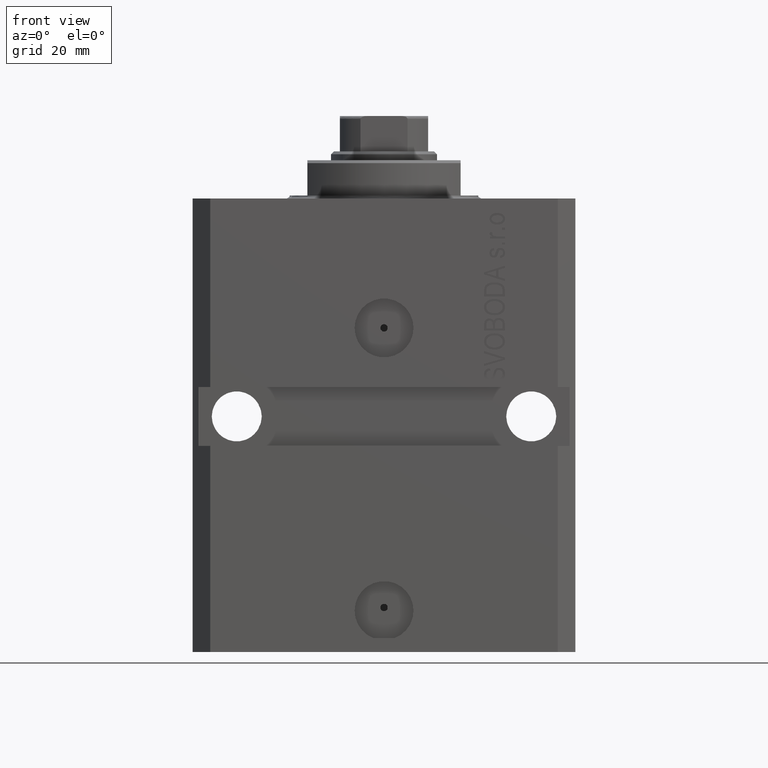
[diagram: clean part render]
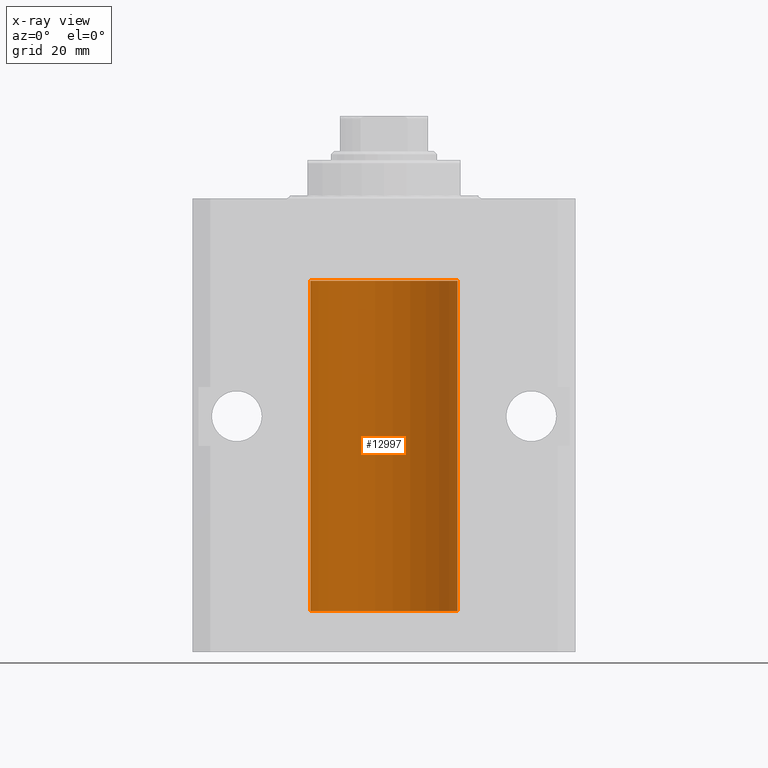
[diagram: x-ray — body ghosted, one internal face saturated and labeled with its STEP entity id]
A machine part, front view, then the same camera in x-ray: the body is ghosted and one INTERNAL B-rep face — a face not visible from any outside direction — is saturated and labeled: STEP entity #12997.
In plain terms, the highlighted cylindrical surface (partial cylindrical patch) has radius 12.5 mm, axis along (0, 0, 1).
Its self-contained STEP definition (entity closure, byte-faithful):
#411 = CARTESIAN_POINT ( 'NONE',  ( -12.49625855304193500, 0.3150454781038046770, -64.45402800297485157 ) ) ;
#903 = LINE ( 'NONE', #18363, #2427 ) ;
#1069 = CARTESIAN_POINT ( 'NONE',  ( -12.50000000000000000, 1.530808498934191521E-15, -13.99999999999999822 ) ) ;
#1149 = DIRECTION ( 'NONE',  ( -0.000000000000000000, -0.000000000000000000, 1.000000000000000000 ) ) ;
#1450 = CARTESIAN_POINT ( 'NONE',  ( -12.50000000000000000, -2.089494013101375120E-17, -21.37499999999999645 ) ) ;
#2411 = EDGE_CURVE ( 'NONE', #7328, #15392, #36417, .T. ) ;
#2427 = VECTOR ( 'NONE', #7611, 1000.000000000000000 ) ;
#2862 = EDGE_CURVE ( 'NONE', #37978, #21190, #10493, .T. ) ;
#3311 = VECTOR ( 'NONE', #10434, 1000.000000000000000 ) ;
#3755 = CARTESIAN_POINT ( 'NONE',  ( -12.49011732893843885, 0.5003763274120245352, -65.38348111289289477 ) ) ;
#3967 = DIRECTION ( 'NONE',  ( 1.000000000000000000, 0.000000000000000000, 0.000000000000000000 ) ) ;
#4189 = CARTESIAN_POINT ( 'NONE',  ( -12.50000000000000000, 1.530808498934191521E-15, -70.09999999999999432 ) ) ;
#5032 = CARTESIAN_POINT ( 'NONE',  ( -12.48520330846397819, 0.6088355886774127201, -22.16325431852561323 ) ) ;
#7328 = VERTEX_POINT ( 'NONE', #46061 ) ;
#7611 = DIRECTION ( 'NONE',  ( -0.000000000000000000, -0.000000000000000000, 1.000000000000000000 ) ) ;
#7693 = ORIENTED_EDGE ( 'NONE', *, *, #18196, .T. ) ;
#8923 = ORIENTED_EDGE ( 'NONE', *, *, #2862, .F. ) ;
#10196 = CARTESIAN_POINT ( 'NONE',  ( -12.50000000000000000, 1.530808498934191521E-15, -70.09999999999999432 ) ) ;
#10434 = DIRECTION ( 'NONE',  ( -0.000000000000000000, -0.000000000000000000, 1.000000000000000000 ) ) ;
#10493 = CIRCLE ( 'NONE', #25729, 12.50000000000000000 ) ;
#11397 = DIRECTION ( 'NONE',  ( 0.000000000000000000, 0.000000000000000000, 1.000000000000000000 ) ) ;
#12110 = EDGE_CURVE ( 'NONE', #37978, #7328, #14772, .T. ) ;
#12212 = CARTESIAN_POINT ( 'NONE',  ( -12.48436376893640443, 0.6250290278979917513, -22.08132082824473486 ) ) ;
#12444 = CARTESIAN_POINT ( 'NONE',  ( -12.49999999999999289, 0.1631761135151241215, -22.62499999999984013 ) ) ;
#12997 = ADVANCED_FACE ( 'NONE', ( #18828 ), #15250, .F. ) ;
#13227 = VERTEX_POINT ( 'NONE', #17827 ) ;
#13339 = CARTESIAN_POINT ( 'NONE',  ( 12.50000000000000000, 0.000000000000000000, -70.09999999999999432 ) ) ;
#14012 = LINE ( 'NONE', #10196, #3311 ) ;
#14772 = LINE ( 'NONE', #37182, #38211 ) ;
#14835 = VERTEX_POINT ( 'NONE', #26798 ) ;
#14946 = DIRECTION ( 'NONE',  ( -0.000000000000000000, -0.000000000000000000, 1.000000000000000000 ) ) ;
#15062 = AXIS2_PLACEMENT_3D ( 'NONE', #32874, #11397, #3967 ) ;
#15250 = CYLINDRICAL_SURFACE ( 'NONE', #27565, 12.50000000000000000 ) ;
#15315 = CARTESIAN_POINT ( 'NONE',  ( -12.49422197749724006, 0.3843754434364375916, -21.50047099568095277 ) ) ;
#15392 = VERTEX_POINT ( 'NONE', #1069 ) ;
#15480 = CARTESIAN_POINT ( 'NONE',  ( 0.000000000000000000, 0.000000000000000000, -70.09999999999999432 ) ) ;
#15549 = CARTESIAN_POINT ( 'NONE',  ( -12.49631005746706336, 0.3253680783018528255, -22.55856740465392463 ) ) ;
#15606 = CARTESIAN_POINT ( 'NONE',  ( -12.50000000000017941, 3.883381774819353300E-13, -65.62500000000359535 ) ) ;
#17000 = EDGE_CURVE ( 'NONE', #19076, #13227, #903, .T. ) ;
#17827 = CARTESIAN_POINT ( 'NONE',  ( -12.50000000000017941, 3.883381646606358354E-13, -22.62500000000358824 ) ) ;
#18196 = EDGE_CURVE ( 'NONE', #14835, #13227, #46354, .T. ) ;
#18363 = CARTESIAN_POINT ( 'NONE',  ( -12.50000000000000000, 1.530808498934191521E-15, -70.09999999999999432 ) ) ;
#18607 = EDGE_LOOP ( 'NONE', ( #19939, #8923, #39484, #24000, #19968, #7693, #39012, #31368 ) ) ;
#18828 = FACE_OUTER_BOUND ( 'NONE', #18607, .T. ) ;
#19076 = VERTEX_POINT ( 'NONE', #45628 ) ;
#19939 = ORIENTED_EDGE ( 'NONE', *, *, #28466, .F. ) ;
#19968 = ORIENTED_EDGE ( 'NONE', *, *, #46629, .F. ) ;
#20759 = CARTESIAN_POINT ( 'NONE',  ( 0.000000000000000000, 0.000000000000000000, -70.09999999999999432 ) ) ;
#21190 = VERTEX_POINT ( 'NONE', #33765 ) ;
#21908 = CARTESIAN_POINT ( 'NONE',  ( -12.48520330846398174, 0.6088355886774118320, -65.16325431852561678 ) ) ;
#22376 = CARTESIAN_POINT ( 'NONE',  ( -12.48810268015257741, 0.5573155909661293705, -64.67347410093867666 ) ) ;
#22637 = DIRECTION ( 'NONE',  ( -0.000000000000000000, -0.000000000000000000, 1.000000000000000000 ) ) ;
#23176 = EDGE_CURVE ( 'NONE', #19076, #27699, #27278, .T. ) ;
#23187 = CARTESIAN_POINT ( 'NONE',  ( -12.50000000000000000, 0.08260426088729219685, -21.37500000000000000 ) ) ;
#23419 = CARTESIAN_POINT ( 'NONE',  ( -12.48436813453758454, 0.6249418250771192618, -21.83668996798922635 ) ) ;
#24000 = ORIENTED_EDGE ( 'NONE', *, *, #2411, .T. ) ;
#25016 = CARTESIAN_POINT ( 'NONE',  ( -12.50000000000017941, 3.883381774819353300E-13, -65.62500000000359535 ) ) ;
#25729 = AXIS2_PLACEMENT_3D ( 'NONE', #20759, #27462, #35310 ) ;
#26798 = CARTESIAN_POINT ( 'NONE',  ( -12.50000000000000000, -2.089494013101375120E-17, -21.37499999999999645 ) ) ;
#27239 = CARTESIAN_POINT ( 'NONE',  ( -12.49011732893843529, 0.5003763274120274218, -22.38348111289287701 ) ) ;
#27278 = B_SPLINE_CURVE_WITH_KNOTS ( 'NONE', 3,
 ( #43360, #28842, #33131, #411, #46687, #22376, #29077, #43588, #21908, #36461, #3755, #39555, #32894, #25016 ),
 .UNSPECIFIED., .F., .F.,
 ( 4, 2, 2, 2, 2, 2, 4 ),
 ( 3.492495172846855184E-18, 0.0002442924852390798859, 0.0004885849704781563023, 0.0009771699409563386254, 0.001221462426195450658, 0.001465754911434562473, 0.001954339881912786538 ),
 .UNSPECIFIED. ) ;
#27462 = DIRECTION ( 'NONE',  ( 0.000000000000000000, 0.000000000000000000, 1.000000000000000000 ) ) ;
#27565 = AXIS2_PLACEMENT_3D ( 'NONE', #15480, #1149, #37427 ) ;
#27699 = VERTEX_POINT ( 'NONE', #15606 ) ;
#28466 = EDGE_CURVE ( 'NONE', #21190, #27699, #14012, .T. ) ;
#28842 = CARTESIAN_POINT ( 'NONE',  ( -12.49999999999999645, 0.08260426088728485550, -64.37499999999998579 ) ) ;
#29077 = CARTESIAN_POINT ( 'NONE',  ( -12.48436813453758809, 0.6249418250771181516, -64.83668996798922990 ) ) ;
#29278 = LINE ( 'NONE', #4189, #45566 ) ;
#31368 = ORIENTED_EDGE ( 'NONE', *, *, #23176, .T. ) ;
#32874 = CARTESIAN_POINT ( 'NONE',  ( 0.000000000000000000, 0.000000000000000000, -13.99999999999999822 ) ) ;
#32894 = CARTESIAN_POINT ( 'NONE',  ( -12.49999999999999822, 0.1631761135151225950, -65.62499999999985789 ) ) ;
#33131 = CARTESIAN_POINT ( 'NONE',  ( -12.49915784441386890, 0.1636601911727943726, -64.39126818989430490 ) ) ;
#33689 = CARTESIAN_POINT ( 'NONE',  ( -12.50000000000017941, 3.883381646606358354E-13, -22.62500000000358824 ) ) ;
#33765 = CARTESIAN_POINT ( 'NONE',  ( -12.50000000000000000, 1.530808498934191521E-15, -70.09999999999999432 ) ) ;
#35310 = DIRECTION ( 'NONE',  ( 1.000000000000000000, 0.000000000000000000, 0.000000000000000000 ) ) ;
#36417 = CIRCLE ( 'NONE', #15062, 12.50000000000000000 ) ;
#36461 = CARTESIAN_POINT ( 'NONE',  ( -12.48809959379011580, 0.5462151254764966435, -65.31461370481613926 ) ) ;
#37182 = CARTESIAN_POINT ( 'NONE',  ( 12.50000000000000000, 0.000000000000000000, -70.09999999999999432 ) ) ;
#37260 = CARTESIAN_POINT ( 'NONE',  ( -12.48809959379011403, 0.5462151254764975317, -22.31461370481611795 ) ) ;
#37427 = DIRECTION ( 'NONE',  ( 1.000000000000000000, 0.000000000000000000, 0.000000000000000000 ) ) ;
#37490 = CARTESIAN_POINT ( 'NONE',  ( -12.49625855304193678, 0.3150454781038042329, -21.45402800297484802 ) ) ;
#37728 = CARTESIAN_POINT ( 'NONE',  ( -12.49915784441386890, 0.1636601911727947889, -21.39126818989430490 ) ) ;
#37978 = VERTEX_POINT ( 'NONE', #13339 ) ;
#38211 = VECTOR ( 'NONE', #22637, 1000.000000000000000 ) ;
#39012 = ORIENTED_EDGE ( 'NONE', *, *, #17000, .F. ) ;
#39484 = ORIENTED_EDGE ( 'NONE', *, *, #12110, .T. ) ;
#39555 = CARTESIAN_POINT ( 'NONE',  ( -12.49631005746706514, 0.3253680783018499389, -65.55856740465391397 ) ) ;
#43360 = CARTESIAN_POINT ( 'NONE',  ( -12.50000000000000000, -1.053276923642966949E-14, -64.37500000000000000 ) ) ;
#43588 = CARTESIAN_POINT ( 'NONE',  ( -12.48436376893640265, 0.6250290278979918623, -65.08132082824472775 ) ) ;
#45098 = CARTESIAN_POINT ( 'NONE',  ( -12.48810268015257563, 0.5573155909661349217, -21.67347410093867666 ) ) ;
#45566 = VECTOR ( 'NONE', #14946, 1000.000000000000000 ) ;
#45628 = CARTESIAN_POINT ( 'NONE',  ( -12.50000000000000000, -1.053276923642966949E-14, -64.37500000000000000 ) ) ;
#46061 = CARTESIAN_POINT ( 'NONE',  ( 12.50000000000000000, 0.000000000000000000, -13.99999999999999822 ) ) ;
#46354 = B_SPLINE_CURVE_WITH_KNOTS ( 'NONE', 3,
 ( #1450, #23187, #37728, #37490, #15315, #45098, #23419, #12212, #5032, #37260, #27239, #15549, #12444, #33689 ),
 .UNSPECIFIED., .F., .F.,
 ( 4, 2, 2, 2, 2, 2, 4 ),
 ( 2.030551168097110502E-20, 0.0002442924852390969078, 0.0004885849704781938157, 0.0009771699409563880650, 0.001221462426195485135, 0.001465754911434582423, 0.001954339881912776130 ),
 .UNSPECIFIED. ) ;
#46629 = EDGE_CURVE ( 'NONE', #14835, #15392, #29278, .T. ) ;
#46687 = CARTESIAN_POINT ( 'NONE',  ( -12.49422197749724361, 0.3843754434364307082, -64.50047099568097053 ) ) ;